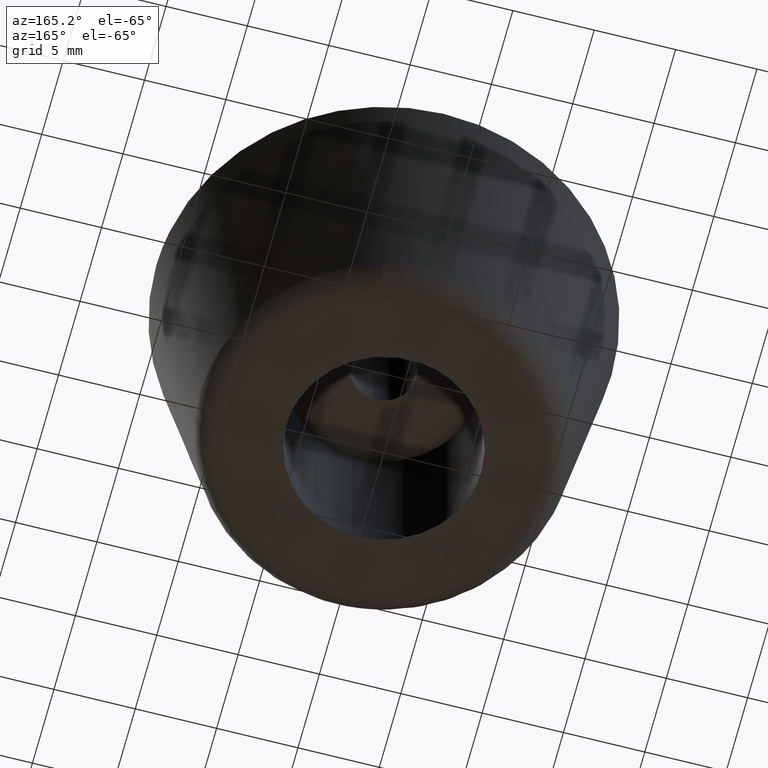
[diagram: clean part render]
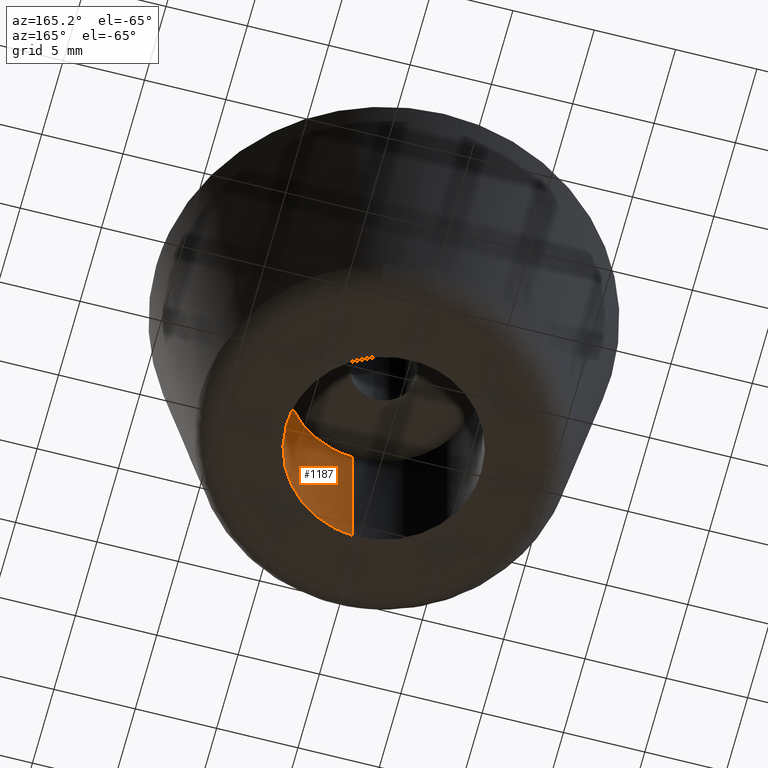
[diagram: same view with one face highlighted and labeled with its STEP entity id]
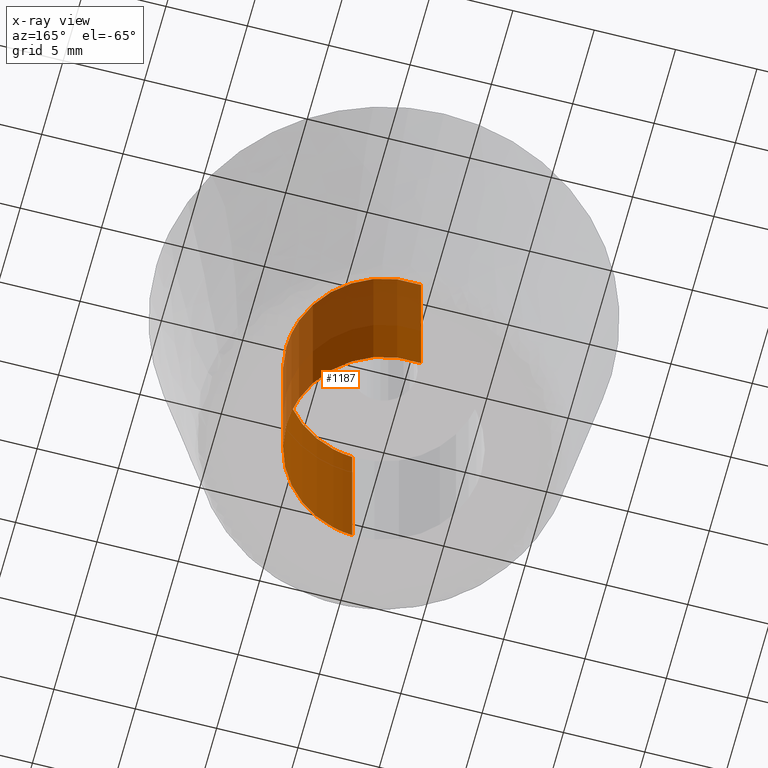
[diagram: x-ray of the same camera — body ghosted, the highlighted face saturated]
A machine part, auxiliary view. The second image highlights one B-rep face of the part: STEP entity #1187.
The next image is the same camera in x-ray: the body ghosted, the highlighted face saturated — about 40% of this face is hidden behind the body in this view.
In plain terms, the highlighted face is a freeform B-spline surface patch.
Its self-contained STEP definition (entity closure, byte-faithful):
#1081=CARTESIAN_POINT('',(-0.796624615734756,5.947547195040796,11.275000000000004));
#1082=CARTESIAN_POINT('',(-0.752290355481200,5.952816993908954,11.275000000000006));
#1083=CARTESIAN_POINT('',(-0.537688371827866,5.978325692691634,11.274999999999999));
#1084=CARTESIAN_POINT('',(-0.366291237209142,5.988808790531200,11.275000000000000));
#1085=CARTESIAN_POINT('',(5.622517553322059,6.355100027740342,11.275000000000002));
#1086=CARTESIAN_POINT('',(5.988808790531200,0.366291237209142,11.275000000000000));
#1087=CARTESIAN_POINT('',(6.355100027740342,-5.622517553322059,11.275000000000002));
#1088=CARTESIAN_POINT('',(0.323221252116977,-5.991443063669277,11.275000000000004));
#1089=CARTESIAN_POINT('',(0.280407108824458,-5.994061688852550,11.275000000000007));
#1090=CARTESIAN_POINT('',(-0.796624615734756,5.947547195040796,-0.281875000000001));
#1091=CARTESIAN_POINT('',(-0.752290355481200,5.952816993908954,-0.281875000000001));
#1092=CARTESIAN_POINT('',(-0.537688371827866,5.978325692691634,-0.281875000000001));
#1093=CARTESIAN_POINT('',(-0.366291237209142,5.988808790531200,-0.281875000000001));
#1094=CARTESIAN_POINT('',(5.622517553322059,6.355100027740342,-0.281875000000001));
#1095=CARTESIAN_POINT('',(5.988808790531200,0.366291237209142,-0.281875000000001));
#1096=CARTESIAN_POINT('',(6.355100027740342,-5.622517553322059,-0.281875000000001));
#1097=CARTESIAN_POINT('',(0.323221252116977,-5.991443063669277,-0.281875000000001));
#1098=CARTESIAN_POINT('',(0.280407108824458,-5.994061688852550,-0.281875000000001));
#1106=(BOUNDED_SURFACE()B_SPLINE_SURFACE(2,1,((#1081,#1090),(#1082,#1091),(#1083,#1092),(#1084,#1093),(#1085,#1094),(#1086,#1095),(#1087,#1096),(#1088,#1097),(#1089,#1098)),.UNSPECIFIED.,.F.,.F.,.U.)B_SPLINE_SURFACE_WITH_KNOTS((3,1,2,2,1,3),(2,2),(0.0,0.101398777260780,0.499043797138952,10.440169294093231,20.381294791047509,20.482704721988220),(0.0,11.556875000000010),.UNSPECIFIED.)GEOMETRIC_REPRESENTATION_ITEM()RATIONAL_B_SPLINE_SURFACE(((0.972008818964734,0.972008818964734),(0.974757309879930,0.974757309879930),(0.988284271247462,0.988284271247462),(1.0,1.0),(0.707106781186548,0.707106781186548),(1.0,1.0),(0.707106781186548,0.707106781186548),(1.002987818743660,1.002987818743660),(1.005975637487319,1.005975637487319)))REPRESENTATION_ITEM('')SURFACE());
#1107=CARTESIAN_POINT('',(-0.708204750544155,5.958057236323452,-1.078983E-015));
#1108=VERTEX_POINT('',#1107);
#1109=CARTESIAN_POINT('',(6.0,0.0,0.0));
#1110=VERTEX_POINT('',#1109);
#1111=CARTESIAN_POINT('',(-0.708204750544155,5.958057236323452,-1.078983E-015));
#1112=CARTESIAN_POINT('',(-0.355344053565167,6.000000000000001,0.0));
#1113=CARTESIAN_POINT('',(0.0,6.0,0.0));
#1114=CARTESIAN_POINT('',(6.0,6.0,0.0));
#1115=CARTESIAN_POINT('',(6.0,0.0,0.0));
#1123=(BOUNDED_CURVE()B_SPLINE_CURVE(2,(#1111,#1112,#1113,#1114,#1115),.UNSPECIFIED.,.F.,.U.)B_SPLINE_CURVE_WITH_KNOTS((3,2,3),(0.229562510810396,0.250000000000000,0.500000000000000),.UNSPECIFIED.)CURVE()GEOMETRIC_REPRESENTATION_ITEM()RATIONAL_B_SPLINE_CURVE((0.956026827287138,0.976055992027167,1.0,0.707106781186548,1.0))REPRESENTATION_ITEM(''));
#1124=EDGE_CURVE('',#1108,#1110,#1123,.T.);
#1125=ORIENTED_EDGE('',*,*,#1124,.T.);
#1126=CARTESIAN_POINT('',(0.366282372672069,-5.988809332696345,2.778333E-014));
#1127=VERTEX_POINT('',#1126);
#1128=CARTESIAN_POINT('',(6.0,0.0,0.0));
#1129=CARTESIAN_POINT('',(5.999999999999999,-5.644244771557840,0.0));
#1130=CARTESIAN_POINT('',(0.366282372672069,-5.988809332696345,2.778333E-014));
#1138=(BOUNDED_CURVE()B_SPLINE_CURVE(2,(#1128,#1129,#1130),.UNSPECIFIED.,.F.,.U.)B_SPLINE_CURVE_WITH_KNOTS((3,3),(0.500000000000000,0.739333217642960),.UNSPECIFIED.)CURVE()GEOMETRIC_REPRESENTATION_ITEM()RATIONAL_B_SPLINE_CURVE((1.0,0.719603694062291,0.976072589046756))REPRESENTATION_ITEM(''));
#1139=EDGE_CURVE('',#1110,#1127,#1138,.T.);
#1140=ORIENTED_EDGE('',*,*,#1139,.T.);
#1141=CARTESIAN_POINT('',(0.366282481981561,-5.988809326011012,11.0));
#1142=VERTEX_POINT('',#1141);
#1143=CARTESIAN_POINT('',(0.366282481981561,-5.988809326011012,11.0));
#1144=CARTESIAN_POINT('',(0.366282372672069,-5.988809332696345,2.778333E-014));
#1145=QUASI_UNIFORM_CURVE('',1,(#1143,#1144),.UNSPECIFIED.,.F.,.U.);
#1146=EDGE_CURVE('',#1142,#1127,#1145,.T.);
#1147=ORIENTED_EDGE('',*,*,#1146,.F.);
#1148=CARTESIAN_POINT('',(6.0,0.0,11.0));
#1149=VERTEX_POINT('',#1148);
#1150=CARTESIAN_POINT('',(6.0,0.0,11.0));
#1151=CARTESIAN_POINT('',(6.000000000000001,-5.644244668344948,11.0));
#1152=CARTESIAN_POINT('',(0.366282481981561,-5.988809326011012,11.000000000000004));
#1160=(BOUNDED_CURVE()B_SPLINE_CURVE(2,(#1150,#1151,#1152),.UNSPECIFIED.,.F.,.U.)B_SPLINE_CURVE_WITH_KNOTS((3,3),(0.500000000000000,0.739333214493585),.UNSPECIFIED.)CURVE()GEOMETRIC_REPRESENTATION_ITEM()RATIONAL_B_SPLINE_CURVE((1.0,0.719603697752014,0.976072582297030))REPRESENTATION_ITEM(''));
#1161=EDGE_CURVE('',#1149,#1142,#1160,.T.);
#1162=ORIENTED_EDGE('',*,*,#1161,.F.);
#1163=CARTESIAN_POINT('',(-0.708204758643714,5.958057235360698,11.0));
#1164=VERTEX_POINT('',#1163);
#1165=CARTESIAN_POINT('',(-0.708204758643714,5.958057235360699,10.999999999999998));
#1166=CARTESIAN_POINT('',(-0.355344061750354,6.0,11.000000000000002));
#1167=CARTESIAN_POINT('',(0.0,6.0,11.0));
#1168=CARTESIAN_POINT('',(6.0,6.0,11.0));
#1169=CARTESIAN_POINT('',(6.0,0.0,11.0));
#1177=(BOUNDED_CURVE()B_SPLINE_CURVE(2,(#1165,#1166,#1167,#1168,#1169),.UNSPECIFIED.,.F.,.U.)B_SPLINE_CURVE_WITH_KNOTS((3,2,3),(0.229562510350900,0.250000000000000,0.500000000000000),.UNSPECIFIED.)CURVE()GEOMETRIC_REPRESENTATION_ITEM()RATIONAL_B_SPLINE_CURVE((0.956026826386506,0.976055991488833,1.0,0.707106781186548,1.0))REPRESENTATION_ITEM(''));
#1178=EDGE_CURVE('',#1164,#1149,#1177,.T.);
#1179=ORIENTED_EDGE('',*,*,#1178,.F.);
#1180=CARTESIAN_POINT('',(-0.708204758643714,5.958057235360698,11.0));
#1181=CARTESIAN_POINT('',(-0.708204750544155,5.958057236323452,-1.078983E-015));
#1182=QUASI_UNIFORM_CURVE('',1,(#1180,#1181),.UNSPECIFIED.,.F.,.U.);
#1183=EDGE_CURVE('',#1164,#1108,#1182,.T.);
#1184=ORIENTED_EDGE('',*,*,#1183,.T.);
#1185=EDGE_LOOP('',(#1125,#1140,#1147,#1162,#1179,#1184));
#1186=FACE_OUTER_BOUND('',#1185,.T.);
#1187=ADVANCED_FACE('',(#1186),#1106,.F.);